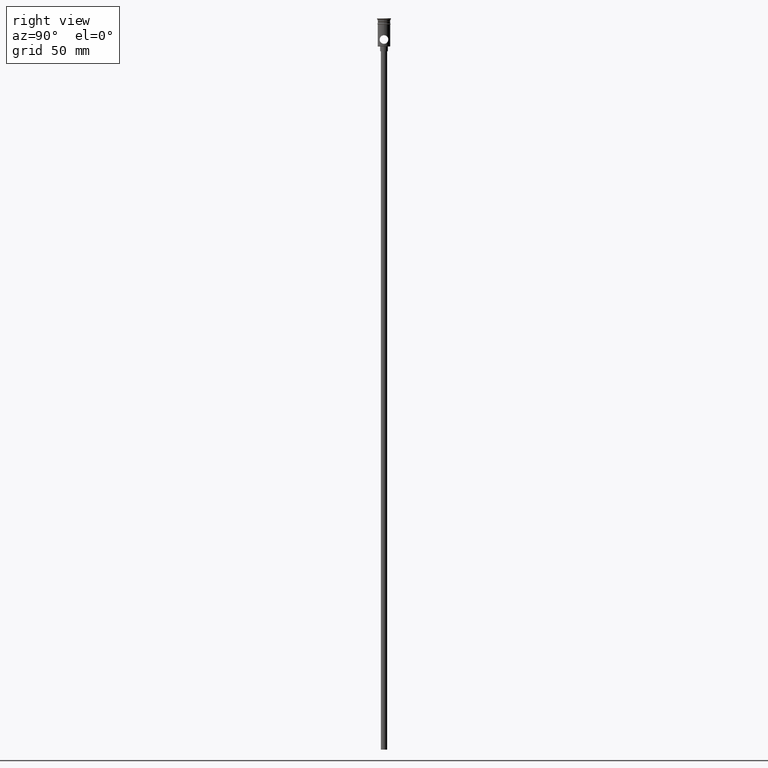
[diagram: clean part render]
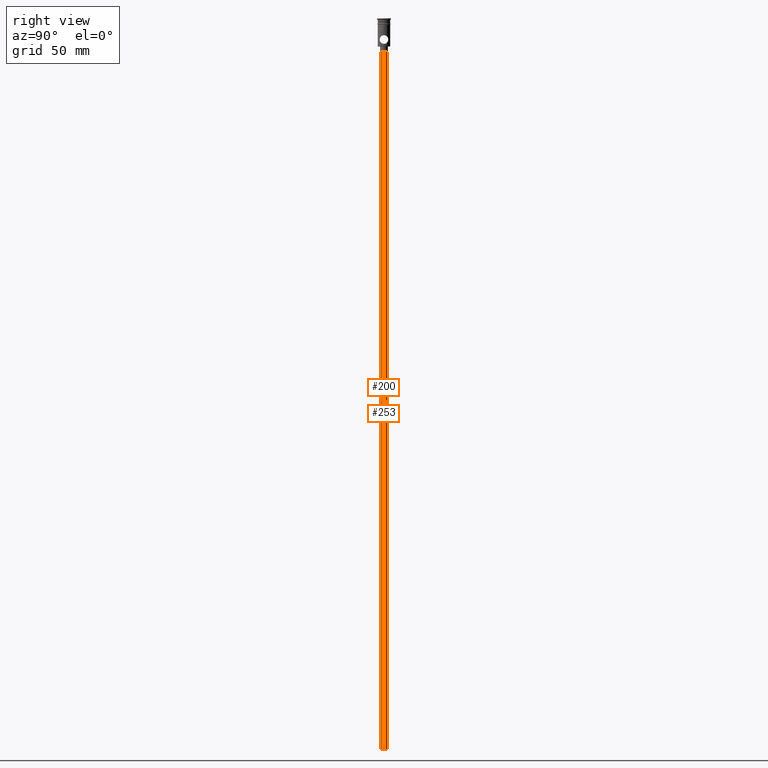
[diagram: same view with one multi-face feature highlighted, each face labeled with its STEP entity id]
A machine part, right view. The highlighted faces form ONE feature: a constant-radius fillet chain: 2 tangent blend faces with common blend radius 2 mm. The faces share edges in the B-rep.
Their STEP definitions:
[1] entity #200 (Cylinder):
#25 = ORIENTED_EDGE ( 'NONE', *, *, #674, .T. ) ;
#55 = CARTESIAN_POINT ( 'NONE',  ( 2.000000000000000000, 0.000000000000000000, -20.99999999999999645 ) ) ;
#121 = EDGE_CURVE ( 'NONE', #926, #1041, #823, .T. ) ;
#200 = ADVANCED_FACE ( 'NONE', ( #1193 ), #1200, .T. ) ;
#236 = DIRECTION ( 'NONE',  ( -0.000000000000000000, -0.000000000000000000, 1.000000000000000000 ) ) ;
#237 = ORIENTED_EDGE ( 'NONE', *, *, #121, .F. ) ;
#258 = CARTESIAN_POINT ( 'NONE',  ( 0.000000000000000000, 0.000000000000000000, -468.0000000000000000 ) ) ;
#267 = DIRECTION ( 'NONE',  ( -1.000000000000000000, 0.000000000000000000, 0.000000000000000000 ) ) ;
#288 = EDGE_LOOP ( 'NONE', ( #237, #633, #1170, #25 ) ) ;
#325 = AXIS2_PLACEMENT_3D ( 'NONE', #258, #950, #1393 ) ;
#397 = VECTOR ( 'NONE', #1215, 1000.000000000000000 ) ;
#427 = LINE ( 'NONE', #1300, #397 ) ;
#432 = EDGE_CURVE ( 'NONE', #915, #926, #843, .T. ) ;
#554 = AXIS2_PLACEMENT_3D ( 'NONE', #612, #1051, #586 ) ;
#586 = DIRECTION ( 'NONE',  ( -1.000000000000000000, 0.000000000000000000, 0.000000000000000000 ) ) ;
#612 = CARTESIAN_POINT ( 'NONE',  ( 0.000000000000000000, 0.000000000000000000, -468.0000000000000000 ) ) ;
#633 = ORIENTED_EDGE ( 'NONE', *, *, #432, .F. ) ;
#674 = EDGE_CURVE ( 'NONE', #1392, #1041, #1314, .T. ) ;
#823 = LINE ( 'NONE', #1246, #870 ) ;
#843 = CIRCLE ( 'NONE', #554, 2.000000000000000000 ) ;
#854 = CARTESIAN_POINT ( 'NONE',  ( -2.000000000000000000, 2.449293598294706414E-16, -20.99999999999999645 ) ) ;
#870 = VECTOR ( 'NONE', #236, 1000.000000000000000 ) ;
#883 = CARTESIAN_POINT ( 'NONE',  ( 2.000000000000000000, 0.000000000000000000, -468.0000000000000000 ) ) ;
#915 = VERTEX_POINT ( 'NONE', #883 ) ;
#926 = VERTEX_POINT ( 'NONE', #1375 ) ;
#950 = DIRECTION ( 'NONE',  ( -0.000000000000000000, -0.000000000000000000, 1.000000000000000000 ) ) ;
#968 = EDGE_CURVE ( 'NONE', #915, #1392, #427, .T. ) ;
#989 = CARTESIAN_POINT ( 'NONE',  ( 0.000000000000000000, 0.000000000000000000, -20.99999999999999645 ) ) ;
#1041 = VERTEX_POINT ( 'NONE', #854 ) ;
#1051 = DIRECTION ( 'NONE',  ( 0.000000000000000000, 0.000000000000000000, -1.000000000000000000 ) ) ;
#1170 = ORIENTED_EDGE ( 'NONE', *, *, #968, .T. ) ;
#1193 = FACE_OUTER_BOUND ( 'NONE', #288, .T. ) ;
#1200 = CYLINDRICAL_SURFACE ( 'NONE', #325, 2.000000000000000000 ) ;
#1215 = DIRECTION ( 'NONE',  ( -0.000000000000000000, -0.000000000000000000, 1.000000000000000000 ) ) ;
#1246 = CARTESIAN_POINT ( 'NONE',  ( -2.000000000000000000, 2.449293598294706414E-16, -468.0000000000000000 ) ) ;
#1300 = CARTESIAN_POINT ( 'NONE',  ( 2.000000000000000000, 0.000000000000000000, -468.0000000000000000 ) ) ;
#1314 = CIRCLE ( 'NONE', #1383, 2.000000000000000000 ) ;
#1375 = CARTESIAN_POINT ( 'NONE',  ( -2.000000000000000000, 2.449293598294706414E-16, -468.0000000000000000 ) ) ;
#1383 = AXIS2_PLACEMENT_3D ( 'NONE', #989, #1427, #267 ) ;
#1392 = VERTEX_POINT ( 'NONE', #55 ) ;
#1393 = DIRECTION ( 'NONE',  ( 1.000000000000000000, 0.000000000000000000, 0.000000000000000000 ) ) ;
#1427 = DIRECTION ( 'NONE',  ( 0.000000000000000000, 0.000000000000000000, -1.000000000000000000 ) ) ;
[2] entity #253 (Cylinder):
#24 = CYLINDRICAL_SURFACE ( 'NONE', #1428, 2.000000000000000000 ) ;
#55 = CARTESIAN_POINT ( 'NONE',  ( 2.000000000000000000, 0.000000000000000000, -20.99999999999999645 ) ) ;
#84 = CARTESIAN_POINT ( 'NONE',  ( 0.000000000000000000, 0.000000000000000000, -20.99999999999999645 ) ) ;
#121 = EDGE_CURVE ( 'NONE', #926, #1041, #823, .T. ) ;
#195 = CARTESIAN_POINT ( 'NONE',  ( 0.000000000000000000, 0.000000000000000000, -468.0000000000000000 ) ) ;
#236 = DIRECTION ( 'NONE',  ( -0.000000000000000000, -0.000000000000000000, 1.000000000000000000 ) ) ;
#253 = ADVANCED_FACE ( 'NONE', ( #1140 ), #24, .T. ) ;
#297 = DIRECTION ( 'NONE',  ( 0.000000000000000000, 0.000000000000000000, -1.000000000000000000 ) ) ;
#387 = ORIENTED_EDGE ( 'NONE', *, *, #1437, .T. ) ;
#397 = VECTOR ( 'NONE', #1215, 1000.000000000000000 ) ;
#427 = LINE ( 'NONE', #1300, #397 ) ;
#454 = CARTESIAN_POINT ( 'NONE',  ( 0.000000000000000000, 0.000000000000000000, -468.0000000000000000 ) ) ;
#487 = AXIS2_PLACEMENT_3D ( 'NONE', #84, #297, #508 ) ;
#508 = DIRECTION ( 'NONE',  ( -1.000000000000000000, 0.000000000000000000, 0.000000000000000000 ) ) ;
#537 = EDGE_LOOP ( 'NONE', ( #1104, #1276, #387, #851 ) ) ;
#629 = CIRCLE ( 'NONE', #677, 2.000000000000000000 ) ;
#638 = DIRECTION ( 'NONE',  ( 0.000000000000000000, 0.000000000000000000, -1.000000000000000000 ) ) ;
#673 = EDGE_CURVE ( 'NONE', #926, #915, #629, .T. ) ;
#677 = AXIS2_PLACEMENT_3D ( 'NONE', #195, #638, #1103 ) ;
#823 = LINE ( 'NONE', #1246, #870 ) ;
#851 = ORIENTED_EDGE ( 'NONE', *, *, #968, .F. ) ;
#854 = CARTESIAN_POINT ( 'NONE',  ( -2.000000000000000000, 2.449293598294706414E-16, -20.99999999999999645 ) ) ;
#870 = VECTOR ( 'NONE', #236, 1000.000000000000000 ) ;
#883 = CARTESIAN_POINT ( 'NONE',  ( 2.000000000000000000, 0.000000000000000000, -468.0000000000000000 ) ) ;
#915 = VERTEX_POINT ( 'NONE', #883 ) ;
#926 = VERTEX_POINT ( 'NONE', #1375 ) ;
#968 = EDGE_CURVE ( 'NONE', #915, #1392, #427, .T. ) ;
#1027 = DIRECTION ( 'NONE',  ( -0.000000000000000000, -0.000000000000000000, 1.000000000000000000 ) ) ;
#1041 = VERTEX_POINT ( 'NONE', #854 ) ;
#1103 = DIRECTION ( 'NONE',  ( -1.000000000000000000, 0.000000000000000000, 0.000000000000000000 ) ) ;
#1104 = ORIENTED_EDGE ( 'NONE', *, *, #673, .F. ) ;
#1140 = FACE_OUTER_BOUND ( 'NONE', #537, .T. ) ;
#1180 = CIRCLE ( 'NONE', #487, 2.000000000000000000 ) ;
#1215 = DIRECTION ( 'NONE',  ( -0.000000000000000000, -0.000000000000000000, 1.000000000000000000 ) ) ;
#1246 = CARTESIAN_POINT ( 'NONE',  ( -2.000000000000000000, 2.449293598294706414E-16, -468.0000000000000000 ) ) ;
#1276 = ORIENTED_EDGE ( 'NONE', *, *, #121, .T. ) ;
#1283 = DIRECTION ( 'NONE',  ( 1.000000000000000000, 0.000000000000000000, 0.000000000000000000 ) ) ;
#1300 = CARTESIAN_POINT ( 'NONE',  ( 2.000000000000000000, 0.000000000000000000, -468.0000000000000000 ) ) ;
#1375 = CARTESIAN_POINT ( 'NONE',  ( -2.000000000000000000, 2.449293598294706414E-16, -468.0000000000000000 ) ) ;
#1392 = VERTEX_POINT ( 'NONE', #55 ) ;
#1428 = AXIS2_PLACEMENT_3D ( 'NONE', #454, #1027, #1283 ) ;
#1437 = EDGE_CURVE ( 'NONE', #1041, #1392, #1180, .T. ) ;